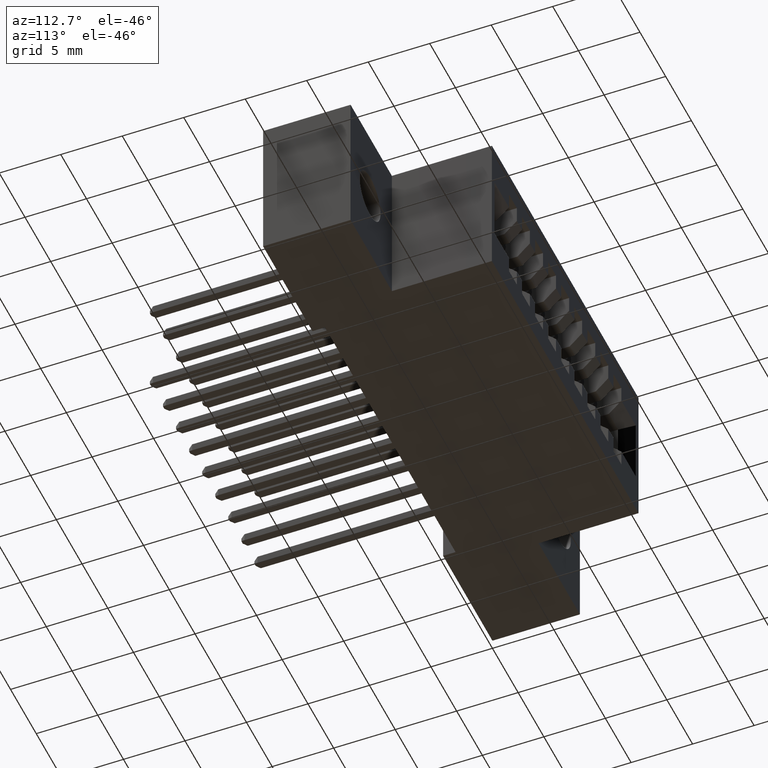
[diagram: clean part render]
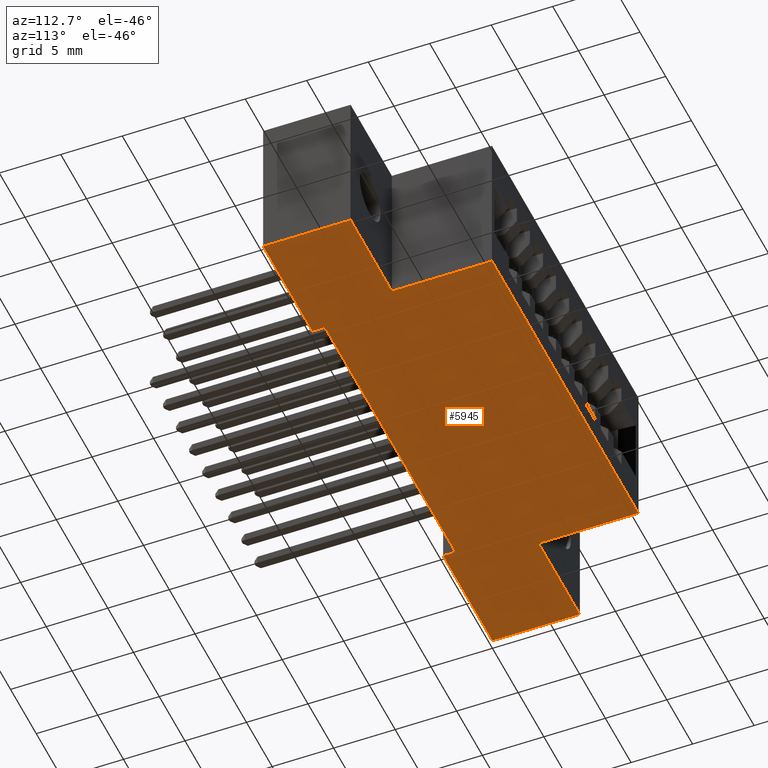
[diagram: same view with one face highlighted and labeled with its STEP entity id]
A machine part, auxiliary view. The second image highlights one B-rep face of the part: STEP entity #5945.
In plain terms, the highlighted planar face has unit normal (0, 0, 1).
Its self-contained STEP definition (entity closure, byte-faithful):
#210 = VECTOR ( 'NONE', #389, 39.37007874015748100 ) ;
#389 = DIRECTION ( 'NONE',  ( -0.0000000000000000000, -1.000000000000000000, -0.0000000000000000000 ) ) ;
#399 = CARTESIAN_POINT ( 'NONE',  ( 1.377499999999999700, 0.0000000000000000000, -0.4900000000000000500 ) ) ;
#628 = LINE ( 'NONE', #6523, #4528 ) ;
#665 = DIRECTION ( 'NONE',  ( 1.000000000000000000, 0.0000000000000000000, 0.0000000000000000000 ) ) ;
#760 = CARTESIAN_POINT ( 'NONE',  ( 0.0000000000000000000, 0.0000000000000000000, -0.4899999999999999900 ) ) ;
#763 = EDGE_CURVE ( 'NONE', #2068, #8053, #3683, .T. ) ;
#779 = EDGE_CURVE ( 'NONE', #3580, #2498, #628, .T. ) ;
#948 = DIRECTION ( 'NONE',  ( -1.000000000000000000, -0.0000000000000000000, -0.0000000000000000000 ) ) ;
#1049 = DIRECTION ( 'NONE',  ( 0.0000000000000000000, 0.0000000000000000000, 1.000000000000000000 ) ) ;
#1101 = DIRECTION ( 'NONE',  ( -1.000000000000000000, -0.0000000000000000000, -0.0000000000000000000 ) ) ;
#1154 = CARTESIAN_POINT ( 'NONE',  ( 0.0000000000000000000, 0.5999999999999999800, -0.4899999999999999900 ) ) ;
#1155 = LINE ( 'NONE', #4983, #2997 ) ;
#1173 = LINE ( 'NONE', #9424, #6400 ) ;
#1290 = ORIENTED_EDGE ( 'NONE', *, *, #8260, .F. ) ;
#1291 = LINE ( 'NONE', #9695, #210 ) ;
#1447 = FACE_OUTER_BOUND ( 'NONE', #4734, .T. ) ;
#1532 = ORIENTED_EDGE ( 'NONE', *, *, #5359, .T. ) ;
#1606 = CARTESIAN_POINT ( 'NONE',  ( 0.0000000000000000000, 0.0000000000000000000, -0.4899999999999999900 ) ) ;
#1947 = DIRECTION ( 'NONE',  ( 1.000000000000000000, 0.0000000000000000000, -0.0000000000000000000 ) ) ;
#2054 = CARTESIAN_POINT ( 'NONE',  ( 1.754999999999999900, 0.2799999999999999700, -0.4899999999999999900 ) ) ;
#2068 = VERTEX_POINT ( 'NONE', #4555 ) ;
#2194 = CARTESIAN_POINT ( 'NONE',  ( 1.438500000000000300, 0.5999999999999999800, -0.4899999999999999900 ) ) ;
#2297 = VERTEX_POINT ( 'NONE', #7044 ) ;
#2313 = VECTOR ( 'NONE', #948, 39.37007874015748100 ) ;
#2393 = DIRECTION ( 'NONE',  ( -0.0000000000000000000, 1.000000000000000000, -0.0000000000000000000 ) ) ;
#2444 = ORIENTED_EDGE ( 'NONE', *, *, #3232, .F. ) ;
#2498 = VERTEX_POINT ( 'NONE', #7660 ) ;
#2516 = LINE ( 'NONE', #8772, #2763 ) ;
#2530 = ORIENTED_EDGE ( 'NONE', *, *, #763, .T. ) ;
#2641 = LINE ( 'NONE', #7510, #5294 ) ;
#2715 = VECTOR ( 'NONE', #6413, 39.37007874015748100 ) ;
#2763 = VECTOR ( 'NONE', #4851, 39.37007874015748100 ) ;
#2828 = DIRECTION ( 'NONE',  ( -0.0000000000000000000, -1.000000000000000000, -0.0000000000000000000 ) ) ;
#2863 = VERTEX_POINT ( 'NONE', #9582 ) ;
#2997 = VECTOR ( 'NONE', #1101, 39.37007874015748100 ) ;
#3232 = EDGE_CURVE ( 'NONE', #4438, #5736, #8387, .T. ) ;
#3251 = VECTOR ( 'NONE', #665, 39.37007874015748100 ) ;
#3309 = CARTESIAN_POINT ( 'NONE',  ( 0.3165000000000000000, 0.2799999999999999700, -0.4899999999999999900 ) ) ;
#3580 = VERTEX_POINT ( 'NONE', #2054 ) ;
#3588 = VERTEX_POINT ( 'NONE', #399 ) ;
#3683 = LINE ( 'NONE', #1606, #2715 ) ;
#3815 = CARTESIAN_POINT ( 'NONE',  ( 0.3165000000000000000, 0.5999999999999999800, -0.4899999999999999900 ) ) ;
#3819 = VERTEX_POINT ( 'NONE', #9352 ) ;
#4231 = ORIENTED_EDGE ( 'NONE', *, *, #9312, .F. ) ;
#4438 = VERTEX_POINT ( 'NONE', #2194 ) ;
#4480 = CARTESIAN_POINT ( 'NONE',  ( 1.377499999999999700, 0.04000000000000000100, -0.4900000000000000500 ) ) ;
#4502 = VERTEX_POINT ( 'NONE', #4480 ) ;
#4528 = VECTOR ( 'NONE', #9768, 39.37007874015748100 ) ;
#4555 = CARTESIAN_POINT ( 'NONE',  ( 0.3775000000000000600, 0.0000000000000000000, -0.4900000000000000500 ) ) ;
#4569 = ORIENTED_EDGE ( 'NONE', *, *, #779, .F. ) ;
#4734 = EDGE_LOOP ( 'NONE', ( #7864, #7297, #4231, #7956, #2530, #9201, #1290, #9910, #2444, #6604, #4569, #1532 ) ) ;
#4851 = DIRECTION ( 'NONE',  ( -0.0000000000000000000, 1.000000000000000000, -0.0000000000000000000 ) ) ;
#4869 = CARTESIAN_POINT ( 'NONE',  ( 0.0000000000000000000, 0.5999999999999999800, -0.4899999999999999900 ) ) ;
#4983 = CARTESIAN_POINT ( 'NONE',  ( 0.0000000000000000000, 0.2799999999999999700, -0.4899999999999999900 ) ) ;
#5294 = VECTOR ( 'NONE', #9111, 39.37007874015748100 ) ;
#5359 = EDGE_CURVE ( 'NONE', #3580, #2297, #8957, .T. ) ;
#5589 = CARTESIAN_POINT ( 'NONE',  ( 0.3775000000000000600, 0.04000000000000000100, -0.4900000000000000500 ) ) ;
#5736 = VERTEX_POINT ( 'NONE', #3815 ) ;
#5795 = LINE ( 'NONE', #9153, #3251 ) ;
#5879 = EDGE_CURVE ( 'NONE', #2863, #2068, #9622, .T. ) ;
#5920 = AXIS2_PLACEMENT_3D ( 'NONE', #1154, #1049, #1947 ) ;
#5922 = VECTOR ( 'NONE', #2828, 39.37007874015748100 ) ;
#5945 = ADVANCED_FACE ( 'NONE', ( #1447 ), #7362, .F. ) ;
#6400 = VECTOR ( 'NONE', #8635, 39.37007874015748100 ) ;
#6413 = DIRECTION ( 'NONE',  ( -1.000000000000000000, -0.0000000000000000000, -0.0000000000000000000 ) ) ;
#6523 = CARTESIAN_POINT ( 'NONE',  ( 1.754999999999999900, 0.2799999999999999700, -0.4899999999999999900 ) ) ;
#6604 = ORIENTED_EDGE ( 'NONE', *, *, #8141, .F. ) ;
#6783 = LINE ( 'NONE', #3309, #8595 ) ;
#7044 = CARTESIAN_POINT ( 'NONE',  ( 1.754999999999999900, 0.0000000000000000000, -0.4899999999999999900 ) ) ;
#7176 = VECTOR ( 'NONE', #9529, 39.37007874015748100 ) ;
#7297 = ORIENTED_EDGE ( 'NONE', *, *, #7688, .F. ) ;
#7312 = EDGE_CURVE ( 'NONE', #3819, #5736, #6783, .T. ) ;
#7362 = PLANE ( 'NONE',  #5920 ) ;
#7439 = EDGE_CURVE ( 'NONE', #8528, #8053, #1291, .T. ) ;
#7510 = CARTESIAN_POINT ( 'NONE',  ( 0.0000000000000000000, 0.0000000000000000000, -0.4899999999999999900 ) ) ;
#7660 = CARTESIAN_POINT ( 'NONE',  ( 1.438500000000000300, 0.2799999999999999700, -0.4899999999999998800 ) ) ;
#7688 = EDGE_CURVE ( 'NONE', #4502, #3588, #1173, .T. ) ;
#7864 = ORIENTED_EDGE ( 'NONE', *, *, #8486, .T. ) ;
#7956 = ORIENTED_EDGE ( 'NONE', *, *, #5879, .T. ) ;
#8053 = VERTEX_POINT ( 'NONE', #760 ) ;
#8141 = EDGE_CURVE ( 'NONE', #2498, #4438, #2516, .T. ) ;
#8260 = EDGE_CURVE ( 'NONE', #3819, #8528, #1155, .T. ) ;
#8387 = LINE ( 'NONE', #4869, #2313 ) ;
#8486 = EDGE_CURVE ( 'NONE', #2297, #3588, #2641, .T. ) ;
#8528 = VERTEX_POINT ( 'NONE', #9214 ) ;
#8595 = VECTOR ( 'NONE', #2393, 39.37007874015748100 ) ;
#8635 = DIRECTION ( 'NONE',  ( -0.0000000000000000000, -1.000000000000000000, -0.0000000000000000000 ) ) ;
#8772 = CARTESIAN_POINT ( 'NONE',  ( 1.438500000000000300, 0.2799999999999999700, -0.4899999999999998800 ) ) ;
#8957 = LINE ( 'NONE', #9874, #5922 ) ;
#9111 = DIRECTION ( 'NONE',  ( -1.000000000000000000, -0.0000000000000000000, -0.0000000000000000000 ) ) ;
#9153 = CARTESIAN_POINT ( 'NONE',  ( 0.3775000000000000600, 0.04000000000000000100, -0.4900000000000000500 ) ) ;
#9201 = ORIENTED_EDGE ( 'NONE', *, *, #7439, .F. ) ;
#9214 = CARTESIAN_POINT ( 'NONE',  ( 0.0000000000000000000, 0.2799999999999999700, -0.4899999999999999900 ) ) ;
#9312 = EDGE_CURVE ( 'NONE', #2863, #4502, #5795, .T. ) ;
#9352 = CARTESIAN_POINT ( 'NONE',  ( 0.3165000000000000000, 0.2799999999999999700, -0.4899999999999999900 ) ) ;
#9424 = CARTESIAN_POINT ( 'NONE',  ( 1.377499999999999700, 0.04000000000000000100, -0.4900000000000000500 ) ) ;
#9529 = DIRECTION ( 'NONE',  ( -0.0000000000000000000, -1.000000000000000000, -0.0000000000000000000 ) ) ;
#9582 = CARTESIAN_POINT ( 'NONE',  ( 0.3775000000000000600, 0.04000000000000000100, -0.4900000000000000500 ) ) ;
#9622 = LINE ( 'NONE', #5589, #7176 ) ;
#9695 = CARTESIAN_POINT ( 'NONE',  ( 0.0000000000000000000, 0.5999999999999999800, -0.4899999999999999900 ) ) ;
#9768 = DIRECTION ( 'NONE',  ( -1.000000000000000000, 0.0000000000000000000, 2.157857814900683400E-016 ) ) ;
#9874 = CARTESIAN_POINT ( 'NONE',  ( 1.754999999999999900, 0.5999999999999999800, -0.4899999999999999900 ) ) ;
#9910 = ORIENTED_EDGE ( 'NONE', *, *, #7312, .T. ) ;